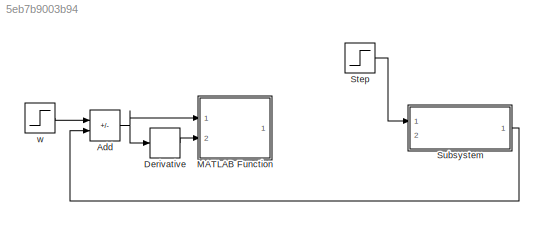
MODEL slx_5eb7b9003b94
KIND model
CONFIG AbsTol = auto
CONFIG EnableMultiTasking = off
CONFIG FixedStep = auto
CONFIG MaxStep = auto
CONFIG MinStep = auto
CONFIG RelTol = 1e-3
CONFIG SampleTimeConstraint = Unconstrained
CONFIG SolverName = VariableStepAuto
CONFIG StartTime = 0.0
CONFIG StopTime = 100
BLOCK [Sum] Add
  IconShape = rectangular
  Inputs = +-
  Ports = [2, 1]
BLOCK [Derivative] Derivative
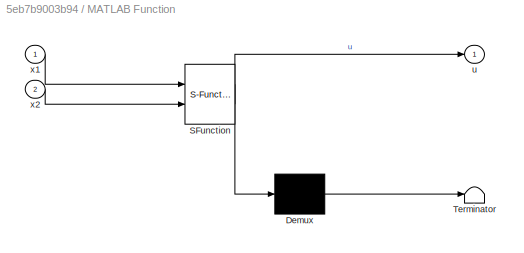
BLOCK [SubSystem] MATLAB Function
  ErrorFcn = Stateflow.Translate.translate
  PermitHierarchicalResolution = ExplicitOnly
  Ports = [2, 1]
  RequestExecContextInheritance = off
  SFBlockType = MATLAB Function
  TreatAsAtomicUnit = on
BLOCK [Demux] MATLAB Function/ Demux 
  Outputs = 1
  Ports = [1, 1]
BLOCK [S-Function] MATLAB Function/ SFunction 
  EnableBusSupport = on
  FunctionName = sf_sfun
  Parameters = Psi,Ti,a1,a2,alpha,b,c,delta,fmax,g
  PortCounts = [2 2]
  Ports = [2, 2]
  SFcnIsStateOwnerBlock = off
  SFunctionDeploymentMode = off
  Tag = Stateflow S-Function 2
BLOCK [Terminator] MATLAB Function/ Terminator 
BLOCK [Outport] MATLAB Function/u
BLOCK [Inport] MATLAB Function/x1
BLOCK [Inport] MATLAB Function/x2
  Port = 2
BLOCK [Step] Step
  After = -12
  SampleTime = 0
  Time = 0.6
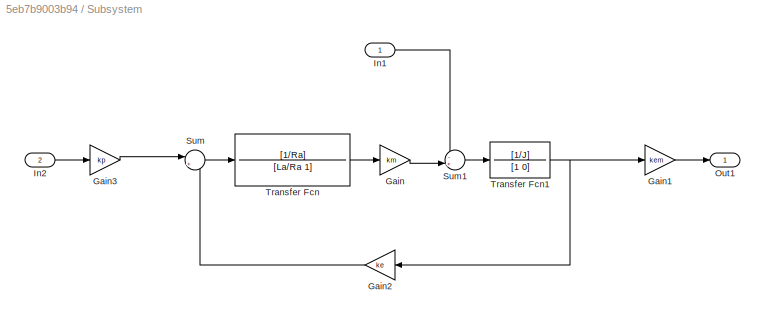
BLOCK [SubSystem] Subsystem
  Ports = [2, 1]
  RequestExecContextInheritance = off
BLOCK [Gain] Subsystem/Gain
  Gain = km
BLOCK [Gain] Subsystem/Gain1
  Gain = kem
BLOCK [Gain] Subsystem/Gain2
  Gain = ke
  NameLocation = top
BLOCK [Gain] Subsystem/Gain3
  Gain = kp
BLOCK [Inport] Subsystem/In1
BLOCK [Inport] Subsystem/In2
  IconDisplay = Signal name
  Port = 2
BLOCK [Outport] Subsystem/Out1
BLOCK [Sum] Subsystem/Sum
  Inputs = |+-
  Ports = [2, 1]
BLOCK [Sum] Subsystem/Sum1
  Inputs = -+|
  Ports = [2, 1]
BLOCK [TransferFcn] Subsystem/Transfer Fcn
  Denominator = [La/Ra 1]
  Numerator = [1/Ra]
BLOCK [TransferFcn] Subsystem/Transfer Fcn1
  Denominator = [1 0]
  Numerator = [1/J]
BLOCK [Step] w
  SampleTime = 0
NET Add:1 -> Derivative:1, MATLAB Function:1
LINE Derivative:1 -> MATLAB Function:2
LINE Step:1 -> Subsystem:1
LINE Subsystem/Gain1:1 -> Subsystem/Out1:1
LINE Subsystem/Gain2:1 -> Subsystem/Sum:2
LINE Subsystem/Gain3:1 -> Subsystem/Sum:1
LINE Subsystem/Gain:1 -> Subsystem/Sum1:2
LINE Subsystem/In1:1 -> Subsystem/Sum1:1
LINE Subsystem/In2:1 -> Subsystem/Gain3:1
LINE Subsystem/Sum1:1 -> Subsystem/Transfer Fcn1:1
LINE Subsystem/Sum:1 -> Subsystem/Transfer Fcn:1
NET Subsystem/Transfer Fcn1:1 -> Subsystem/Gain1:1, Subsystem/Gain2:1
LINE Subsystem/Transfer Fcn:1 -> Subsystem/Gain:1
LINE Subsystem:1 -> Add:2
LINE w:1 -> Add:1
note: NET lines group one-source signal fan-out (src -> all destinations, sorted); 1:1 wires keep LINE
CHART MATLAB Function states=1 transitions=1
  STATE_LABEL 'eML_blk_kernel()'
  STATE_LABEL 'SCRIPT:\nfunction u = fcn(x1,x2,Psi, alpha, g, Ti, c, a1, a2, b, fmax, delta)\ng = c*x1+x2;\nalpha=(mod((c^2 - a2*c + a1)*x1)+fmax)/mod(b)*(mod(x1)+1/Ti*())+delta;\n\n\n'
CHART  states=0 transitions=0
